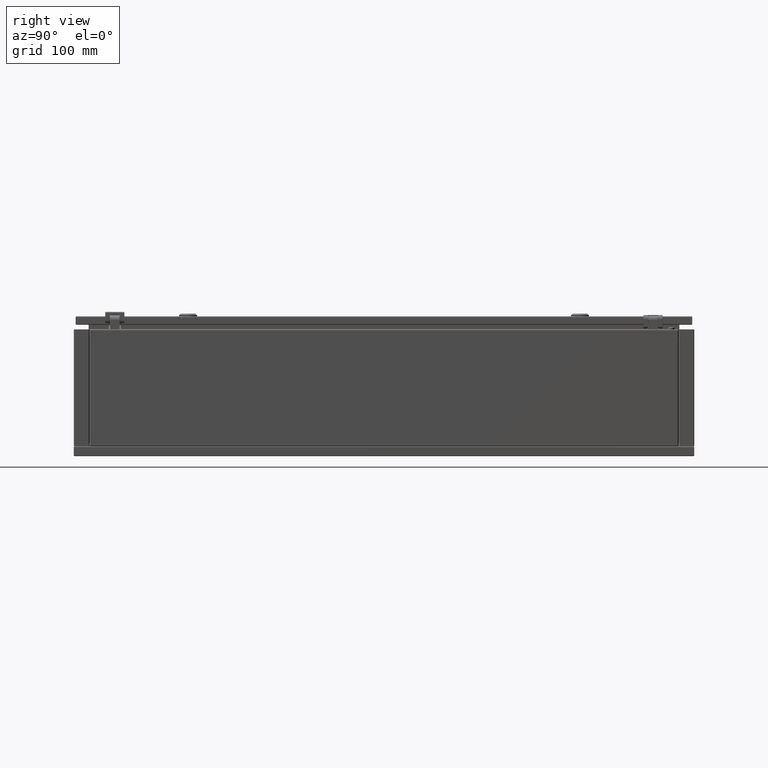
[diagram: clean part render]
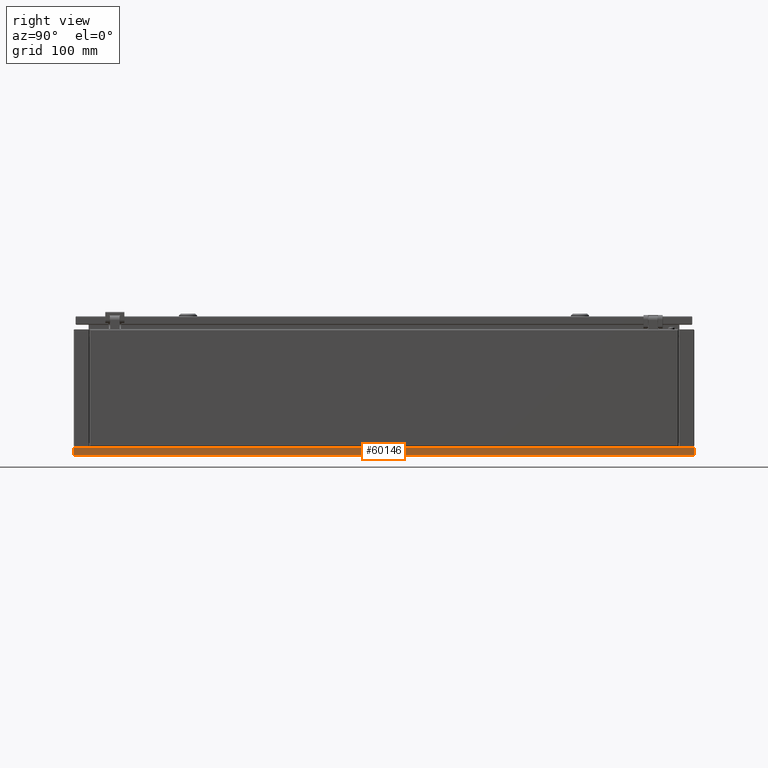
[diagram: same view with one face highlighted and labeled with its STEP entity id]
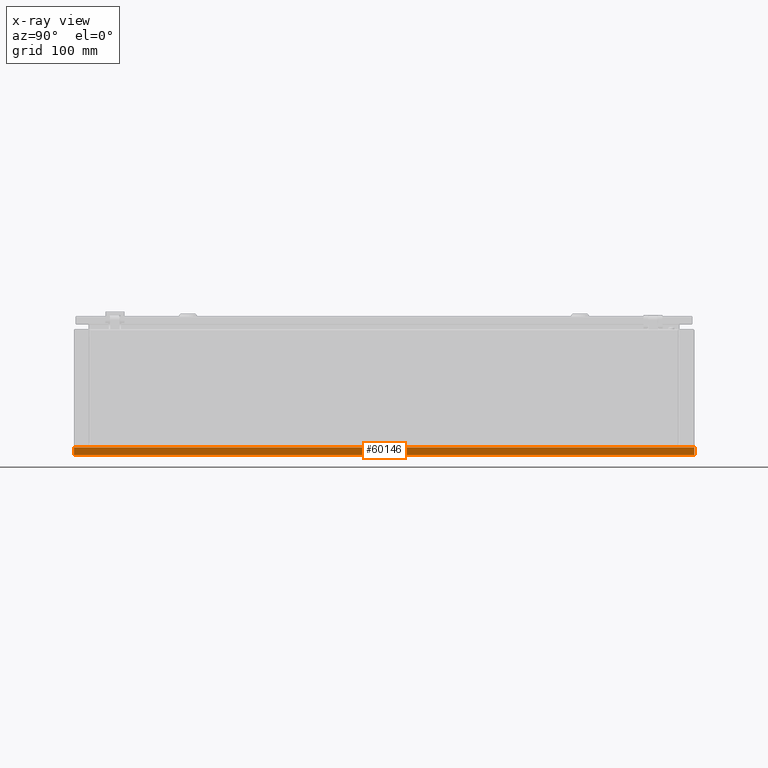
[diagram: x-ray of the same camera — body ghosted, the highlighted face saturated]
A machine part, right view. The second image highlights one B-rep face of the part: STEP entity #60146.
The next image is the same camera in x-ray: the body ghosted, the highlighted face saturated — about 0% of this face is hidden behind the body in this view.
In plain terms, the highlighted planar face has unit normal (-1, -0, 0).
Its self-contained STEP definition (entity closure, byte-faithful):
#2221 = DIRECTION ( 'NONE',  ( -1.000000000000000000, -5.843279076974510200E-017, 3.965082230804130600E-015 ) ) ;
#5351 = CARTESIAN_POINT ( 'NONE',  ( 275.0000000000000000, 475.0000000000000000, 12.50000000000012100 ) ) ;
#5763 = LINE ( 'NONE', #56283, #88077 ) ;
#10359 = PLANE ( 'NONE',  #44826 ) ;
#15869 = DIRECTION ( 'NONE',  ( 4.625929269271420600E-015, -4.625929269271420600E-015, 1.000000000000000000 ) ) ;
#19818 = CARTESIAN_POINT ( 'NONE',  ( 275.0000000000000000, 475.0000000000000000, 0.4999999999996119800 ) ) ;
#26304 = VERTEX_POINT ( 'NONE', #47363 ) ;
#26367 = CARTESIAN_POINT ( 'NONE',  ( 275.0000000000000000, -475.0000000000000000, 12.50000000000000000 ) ) ;
#27782 = ORIENTED_EDGE ( 'NONE', *, *, #59569, .F. ) ;
#30441 = VECTOR ( 'NONE', #15869, 1000.000000000000000 ) ;
#32822 = CARTESIAN_POINT ( 'NONE',  ( 275.0000000000000000, -475.0000000000000000, 0.4999999999994450000 ) ) ;
#33562 = FACE_OUTER_BOUND ( 'NONE', #46190, .T. ) ;
#35821 = DIRECTION ( 'NONE',  ( 0.0000000000000000000, 4.625929269271480600E-015, 1.000000000000000000 ) ) ;
#43551 = ORIENTED_EDGE ( 'NONE', *, *, #63619, .F. ) ;
#44826 = AXIS2_PLACEMENT_3D ( 'NONE', #87812, #2221, #79704 ) ;
#45090 = VECTOR ( 'NONE', #35821, 1000.000000000000000 ) ;
#45284 = EDGE_CURVE ( 'NONE', #58050, #58889, #64478, .T. ) ;
#46190 = EDGE_LOOP ( 'NONE', ( #75816, #43551, #27782, #96365 ) ) ;
#46845 = CARTESIAN_POINT ( 'NONE',  ( 275.0000000000000000, 475.0000000000000000, 0.4999999999995010700 ) ) ;
#47363 = CARTESIAN_POINT ( 'NONE',  ( 275.0000000000000000, -475.0000000000000000, 0.4999999999994450000 ) ) ;
#56283 = CARTESIAN_POINT ( 'NONE',  ( 275.0000000000000000, -475.0000000000000000, 0.4999999999996670400 ) ) ;
#56907 = DIRECTION ( 'NONE',  ( 5.843279076974520100E-017, -1.000000000000000000, 5.843279076974500400E-017 ) ) ;
#57194 = VERTEX_POINT ( 'NONE', #26367 ) ;
#58050 = VERTEX_POINT ( 'NONE', #46845 ) ;
#58889 = VERTEX_POINT ( 'NONE', #5351 ) ;
#59569 = EDGE_CURVE ( 'NONE', #58050, #26304, #5763, .T. ) ;
#60146 = ADVANCED_FACE ( 'NONE', ( #33562 ), #10359, .F. ) ;
#63619 = EDGE_CURVE ( 'NONE', #26304, #57194, #92104, .T. ) ;
#64478 = LINE ( 'NONE', #19818, #45090 ) ;
#73298 = VECTOR ( 'NONE', #100439, 1000.000000000000000 ) ;
#75816 = ORIENTED_EDGE ( 'NONE', *, *, #95791, .T. ) ;
#79704 = DIRECTION ( 'NONE',  ( 3.965082230804130600E-015, -9.723815551499239300E-034, 1.000000000000000000 ) ) ;
#84201 = CARTESIAN_POINT ( 'NONE',  ( 275.0000000000000000, 473.2928932188129900, 12.49999999999979900 ) ) ;
#85326 = LINE ( 'NONE', #84201, #73298 ) ;
#87812 = CARTESIAN_POINT ( 'NONE',  ( 275.0000000000000000, -7.321332021956370000E-014, -1.276756478318930000E-012 ) ) ;
#88077 = VECTOR ( 'NONE', #56907, 1000.000000000000000 ) ;
#92104 = LINE ( 'NONE', #32822, #30441 ) ;
#95791 = EDGE_CURVE ( 'NONE', #58889, #57194, #85326, .T. ) ;
#96365 = ORIENTED_EDGE ( 'NONE', *, *, #45284, .T. ) ;
#100439 = DIRECTION ( 'NONE',  ( -1.479114197289395800E-031, -1.000000000000000000, -1.352634129555885900E-031 ) ) ;